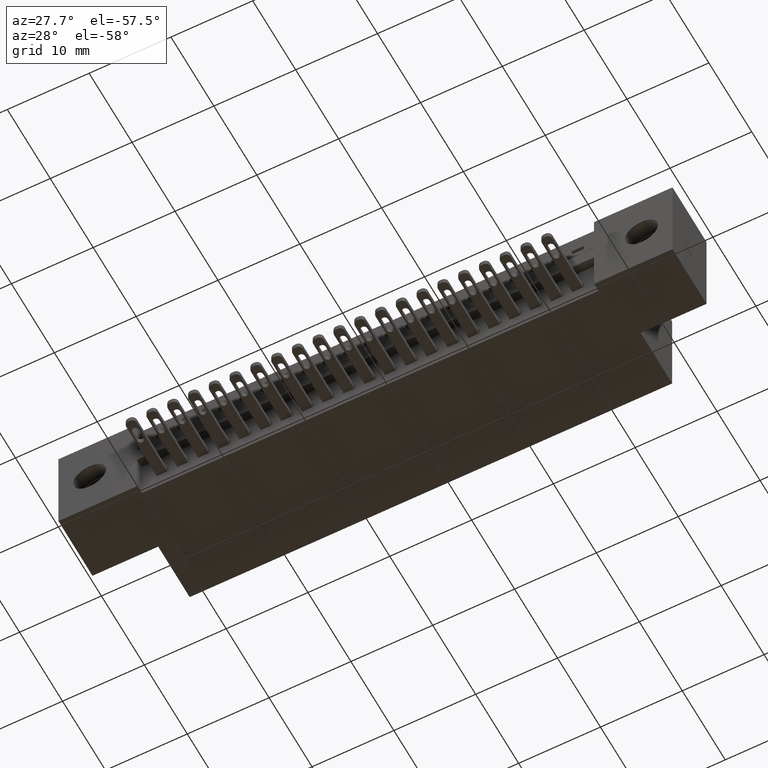
[diagram: clean part render]
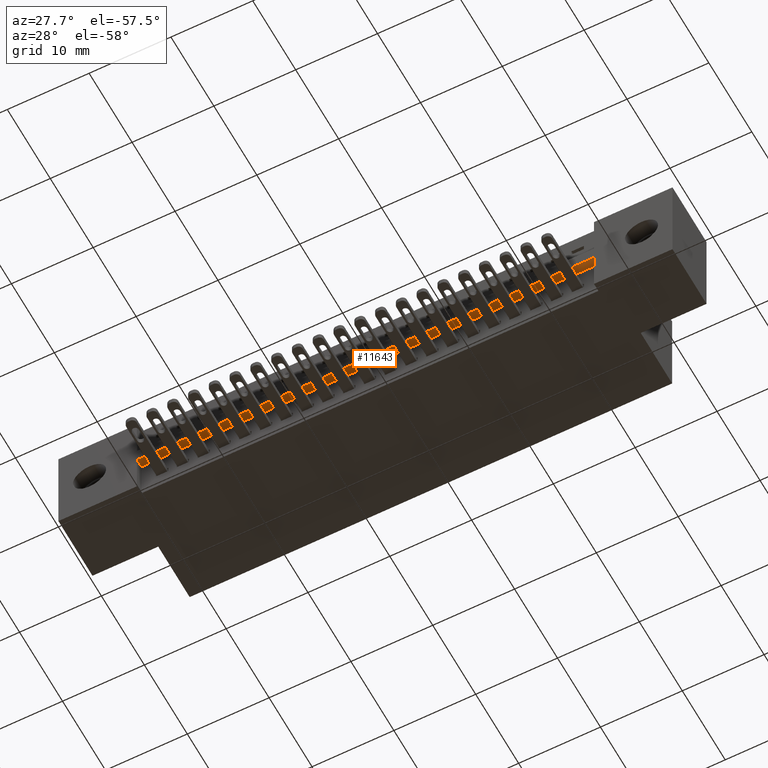
[diagram: same view with one face highlighted and labeled with its STEP entity id]
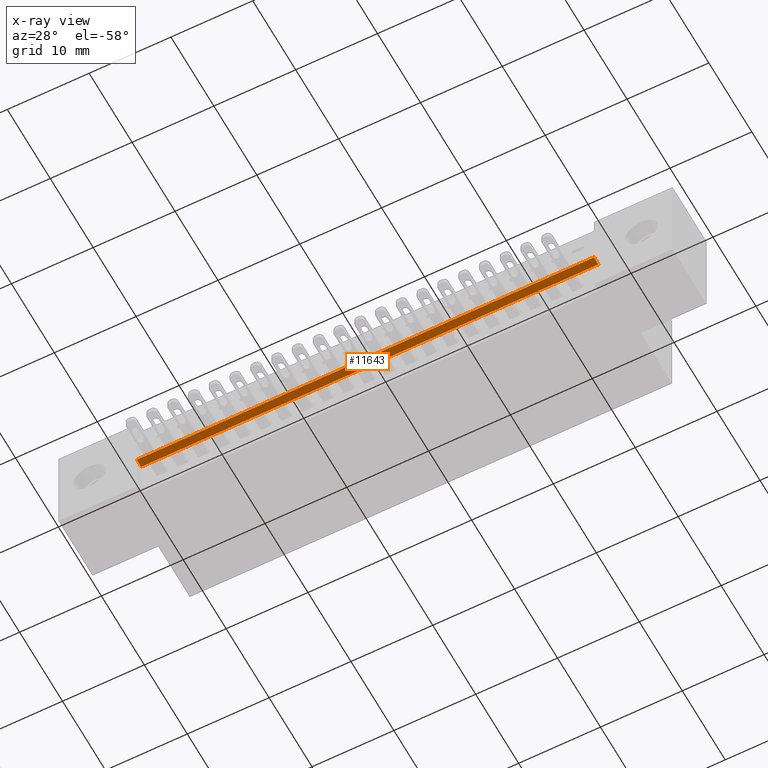
[diagram: x-ray of the same camera — body ghosted, the highlighted face saturated]
A machine part, auxiliary view. The second image highlights one B-rep face of the part: STEP entity #11643.
The next image is the same camera in x-ray: the body ghosted, the highlighted face saturated — about 0% of this face is hidden behind the body in this view.
In plain terms, the highlighted planar face has unit normal (0, 0, 1).
Its self-contained STEP definition (entity closure, byte-faithful):
#439 = ORIENTED_EDGE ( 'NONE', *, *, #1064, .F. ) ;
#652 = ORIENTED_EDGE ( 'NONE', *, *, #4431, .F. ) ;
#781 = DIRECTION ( 'NONE',  ( 7.760931800182566100E-017, -0.0000000000000000000, 1.000000000000000000 ) ) ;
#1064 = EDGE_CURVE ( 'NONE', #6113, #10600, #3839, .T. ) ;
#1374 = FACE_OUTER_BOUND ( 'NONE', #12598, .T. ) ;
#1949 = LINE ( 'NONE', #4998, #5977 ) ;
#2065 = DIRECTION ( 'NONE',  ( 1.000000000000000000, 0.0000000000000000000, -7.760931800182566100E-017 ) ) ;
#2387 = CARTESIAN_POINT ( 'NONE',  ( 2.577500000000000100, 0.0000000000000000000, -0.2800000000000001900 ) ) ;
#2397 = CARTESIAN_POINT ( 'NONE',  ( 0.3775000000000000000, 0.0000000000000000000, -0.2800000000000000300 ) ) ;
#2602 = CARTESIAN_POINT ( 'NONE',  ( 0.3775000000000000000, 0.0000000000000000000, -0.2800000000000000300 ) ) ;
#2919 = VERTEX_POINT ( 'NONE', #2387 ) ;
#2931 = ORIENTED_EDGE ( 'NONE', *, *, #6171, .T. ) ;
#3839 = LINE ( 'NONE', #14090, #11295 ) ;
#3949 = DIRECTION ( 'NONE',  ( -1.000000000000000000, -0.0000000000000000000, 7.760931800182566100E-017 ) ) ;
#4196 = EDGE_CURVE ( 'NONE', #2919, #10600, #11426, .T. ) ;
#4431 = EDGE_CURVE ( 'NONE', #15000, #6113, #1949, .T. ) ;
#4998 = CARTESIAN_POINT ( 'NONE',  ( 0.3775000000000000000, 0.04000000000000000100, -0.2800000000000000300 ) ) ;
#5293 = CARTESIAN_POINT ( 'NONE',  ( 0.3775000000000000000, 0.04000000000000000100, -0.2800000000000000300 ) ) ;
#5529 = LINE ( 'NONE', #13061, #15595 ) ;
#5977 = VECTOR ( 'NONE', #10201, 39.37007874015748100 ) ;
#6113 = VERTEX_POINT ( 'NONE', #5293 ) ;
#6132 = PLANE ( 'NONE',  #13609 ) ;
#6171 = EDGE_CURVE ( 'NONE', #15000, #2919, #5529, .T. ) ;
#6438 = CARTESIAN_POINT ( 'NONE',  ( 2.577500000000000100, 0.04000000000000000100, -0.2800000000000001900 ) ) ;
#7776 = DIRECTION ( 'NONE',  ( -0.0000000000000000000, -1.000000000000000000, -0.0000000000000000000 ) ) ;
#9089 = DIRECTION ( 'NONE',  ( -0.0000000000000000000, -1.000000000000000000, -0.0000000000000000000 ) ) ;
#9781 = CARTESIAN_POINT ( 'NONE',  ( 0.3775000000000000000, 0.04000000000000000100, -0.2800000000000000300 ) ) ;
#10201 = DIRECTION ( 'NONE',  ( -1.000000000000000000, -0.0000000000000000000, 7.760931800182566100E-017 ) ) ;
#10600 = VERTEX_POINT ( 'NONE', #2397 ) ;
#11295 = VECTOR ( 'NONE', #7776, 39.37007874015748100 ) ;
#11426 = LINE ( 'NONE', #2602, #15831 ) ;
#11643 = ADVANCED_FACE ( 'NONE', ( #1374 ), #6132, .F. ) ;
#12598 = EDGE_LOOP ( 'NONE', ( #12917, #439, #652, #2931 ) ) ;
#12917 = ORIENTED_EDGE ( 'NONE', *, *, #4196, .T. ) ;
#13061 = CARTESIAN_POINT ( 'NONE',  ( 2.577500000000000100, 0.04000000000000000100, -0.2800000000000001900 ) ) ;
#13609 = AXIS2_PLACEMENT_3D ( 'NONE', #9781, #781, #2065 ) ;
#14090 = CARTESIAN_POINT ( 'NONE',  ( 0.3775000000000000000, 0.04000000000000000100, -0.2800000000000000300 ) ) ;
#15000 = VERTEX_POINT ( 'NONE', #6438 ) ;
#15595 = VECTOR ( 'NONE', #9089, 39.37007874015748100 ) ;
#15831 = VECTOR ( 'NONE', #3949, 39.37007874015748100 ) ;